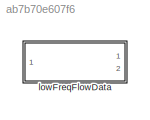
MODEL slx_ab7b70e607f6
KIND library
CONFIG AbsTol = auto
CONFIG EnableMultiTasking = off
CONFIG FixedStep = auto
CONFIG MaxStep = auto
CONFIG MinStep = auto
CONFIG RelTol = 1e-3
CONFIG SampleTimeConstraint = Unconstrained
CONFIG SolverName = VariableStepAuto
CONFIG StartTime = 0.0
CONFIG StopTime = 10.0
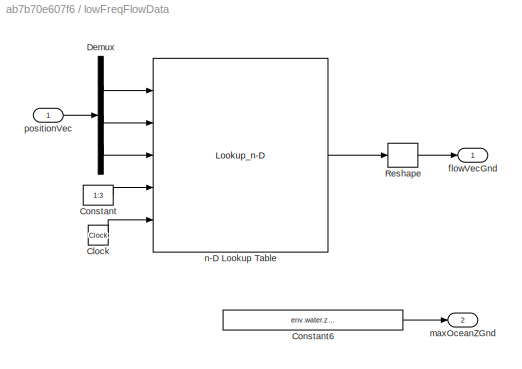
BLOCK [SubSystem] lowFreqFlowData
  Ports = [1, 2]
  RequestExecContextInheritance = off
  VariantControl = VSS_flowCalculation_constXYZT
BLOCK [Clock] lowFreqFlowData/Clock
BLOCK [Constant] lowFreqFlowData/Constant
  Value = 1:3
BLOCK [Constant] lowFreqFlowData/Constant6
  Value = env.water.zGridPoints.Value(end)
BLOCK [Demux] lowFreqFlowData/Demux
  Outputs = 3
  Ports = [1, 3]
BLOCK [Reshape] lowFreqFlowData/Reshape
  OutputDimensionality = Column vector (2-D)
  Ports = [1, 1]
BLOCK [Outport] lowFreqFlowData/flowVecGnd
  VectorParamsAs1DForOutWhenUnconnected = off
BLOCK [Outport] lowFreqFlowData/maxOceanZGnd
  Port = 2
  VectorParamsAs1DForOutWhenUnconnected = off
BLOCK [Lookup_n-D] lowFreqFlowData/n-D Lookup Table
  BeginIndexSearchUsingPreviousIndexResult = on
  BreakpointsForDimension1 = env.water.xGridPoints.Value
  BreakpointsForDimension2 = env.water.yGridPoints.Value
  BreakpointsForDimension3 = env.water.zGridPoints.Value
  BreakpointsForDimension4 = 1:3
  BreakpointsForDimension5 = env.water.flowVecTimeseries.Value.Time
  ExtrapMethod = Clip
  InputPortMap = u0,u1,u2,u3,u4
  InternalRulePriority = Speed
  NumberOfTableDimensions = 5
  Ports = [5, 1]
  RndMeth = Simplest
  Table = env.water.flowVecTimeseries.Value.Data
  UseLastTableValue = on
BLOCK [Inport] lowFreqFlowData/positionVec
  PortDimensions = [3 1]
LINE lowFreqFlowData/Clock:1 -> lowFreqFlowData/n-D Lookup Table:5
LINE lowFreqFlowData/Constant6:1 -> lowFreqFlowData/maxOceanZGnd:1
LINE lowFreqFlowData/Constant:1 -> lowFreqFlowData/n-D Lookup Table:4
LINE lowFreqFlowData/Demux:1 -> lowFreqFlowData/n-D Lookup Table:1
LINE lowFreqFlowData/Demux:2 -> lowFreqFlowData/n-D Lookup Table:2
LINE lowFreqFlowData/Demux:3 -> lowFreqFlowData/n-D Lookup Table:3
LINE lowFreqFlowData/Reshape:1 -> lowFreqFlowData/flowVecGnd:1
LINE lowFreqFlowData/n-D Lookup Table:1 -> lowFreqFlowData/Reshape:1
LINE lowFreqFlowData/positionVec:1 -> lowFreqFlowData/Demux:1
